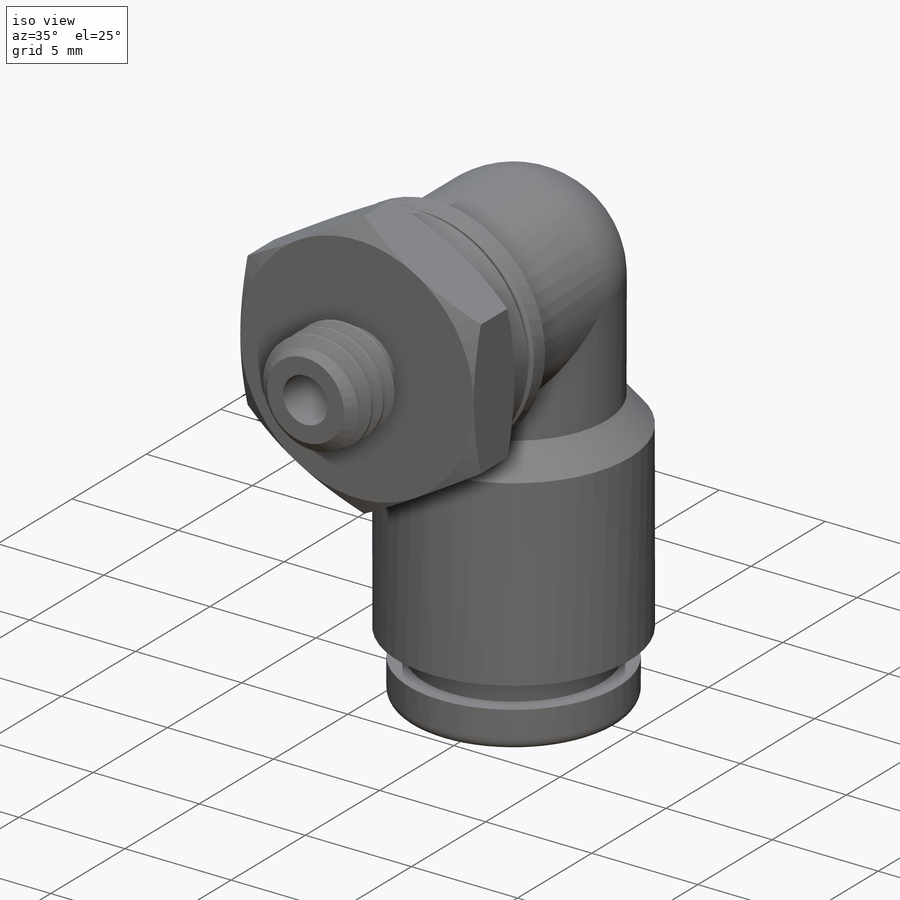
[diagram: iso view]
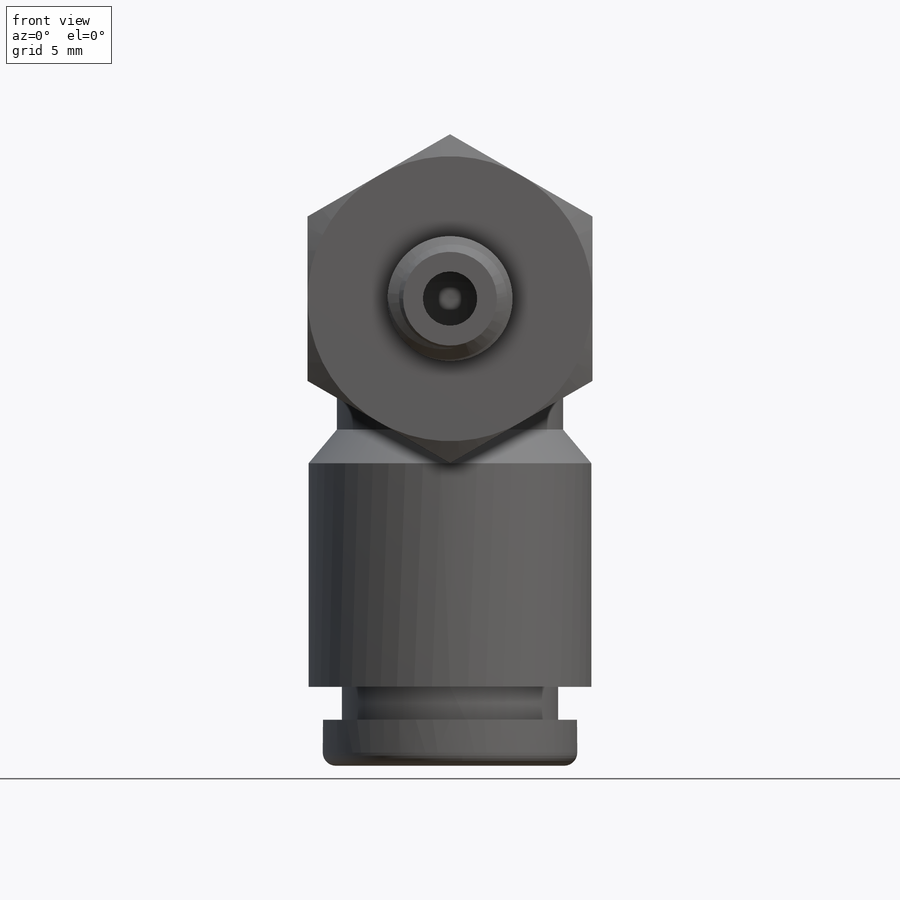
[diagram: front view]
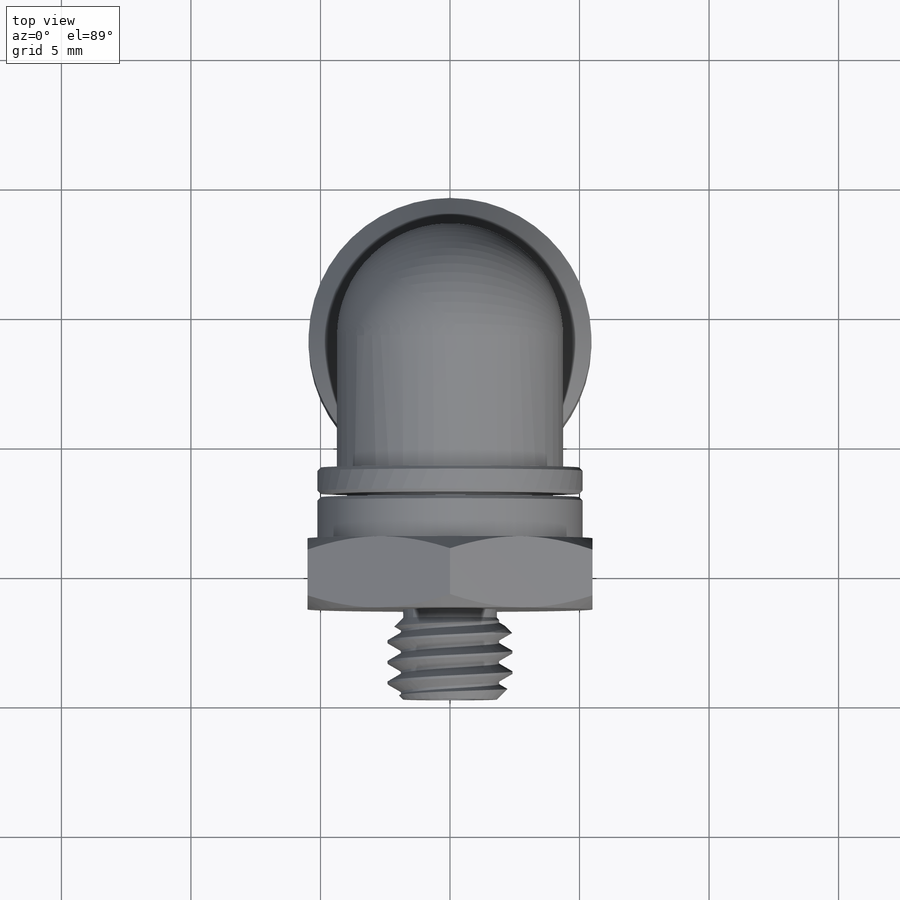
[diagram: top view]
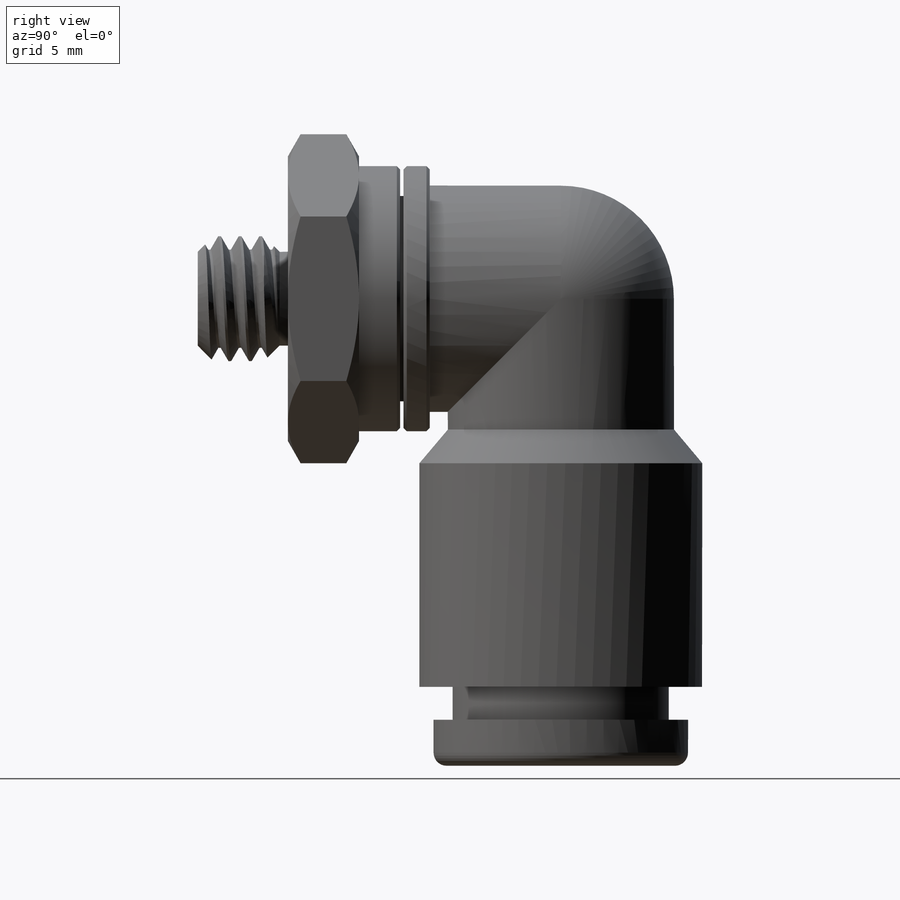
[diagram: right view]
SOLIDWORKS PART (.sldprt)
format: sldprt  version: not decoded by parser v0  size: 775,680 bytes
history: native  units: mm
features: sketch x21, cut_extrude x6, extrude x5, revolve x3, cut_revolve x2, material x1, helix x1, sweep x1, chamfer x1 (+15 scaffold rows collapsed)
feature tree (56):
  scaffold x15  (default folders/planes/origin — collapsed)
  material  "Material <not specified>"
  sketch  "Sketch1"  dims[pipe od=4.826mm D1=~0.697083mm]
  extrude  "Extrude1"  Depth=3.4798mm Thread length=3.4798mm
  sketch  "Sketch2"
  helix  "Helix/Spiral1"  Pitch=5.5118mm pitch=0.79375mm
  sketch  "Sketch3"  dims[c1.D1=~3.36501mm c2.D1=60.0deg c2.D2=~0.099219mm c2.D3=~0.396875mm c2.D4=1.5875mm c3.D4=5.0deg]
  sweep  "Cut-Sweep1"
  sketch  "Sketch4"  dims[c1.D1=1.5875mm c2.D1=~1.783333deg c2.D2=~2.930708mm c3.D2=45.0deg c3.D3=0.3175mm c3.D4=~1.418198mm c4.D4=45.0deg c4.D5=0.127mm c4.D6=~1.820931mm c4.D7=0.254mm c4.D1=~1.787485mm]
  cut_revolve  "Cut-Revolve1"  Angle=360deg
  sketch  "Sketch5"  dims[Hex Size=11.0mm]
  extrude  "Extrude2"  Depth=2.75mm
  sketch  "Sketch6"
  cut_extrude  "Cut-Extrude1"  [1 undecoded]
  sketch  "Sketch7"
  cut_extrude  "Cut-Extrude2"  [1 undecoded]
  sketch  "Sketch9"  dims[H=16.002mm L=18.034mm G=10.922mm]
  sketch  "Sketch10"  dims[c1.D3=0.508mm c1.D1=1.905mm c1.D2=1.27mm c1.D6=0.381mm c1.tube od=12.7mm c1.D4=17.78mm c1.D5=9.8298mm c1.D7=~30.249738mm c2.D7=40.0deg c2.D8=2.032mm c2.D1=~31.762975mm c3.D1=45.0deg c4.D1=~17.267413mm c5.D1=90.0deg c5.tube od=6.35mm c5.D4=10.922mm c5.D8=~8.35533mm c5.D9=1.778mm c5.D10=10.922mm c5.D7=~7.241452mm c6.D7=40.0deg]
  revolve  "Revolve1"  Angle=360deg
  sketch  "Sketch37"
  sketch  "Sketch11"  dims[c1.D1=~9.18971mm c2.D1=50.0deg c2.D2=1.524mm c2.D3=~12.78128mm c2.D4=1.5875mm c2.D5=0.127mm c2.D6=1.143mm c3.D2=~7.72302mm c3.D7=~11.297162mm c3.D1=1.016mm c3.D3=0.381mm]
  revolve  "Revolve2"  Angle=360deg
  sketch  "Sketch23"  dims[D1=8.7376mm]
  extrude  "Extrude3"  [1 undecoded]
  sketch  "Sketch30"  dims[D1=8.7376mm]
  extrude  "Extrude4"  [1 undecoded]
  sketch  "Sketch31"  dims[D1=0.0mm]
  revolve  "Revolve3"  Angle=90deg
  chamfer  "Chamfer1"  Distance=0.127mm Angle=45deg
  sketch  "Sketch18"  dims[D1=0.762mm]
  cut_extrude  "Cut-Extrude5"  [1 undecoded]
  sketch  "Sketch29"
  sketch  "Sketch32"
  extrude  "Extrude5"  [1 undecoded]
  sketch  "Sketch33"  dims[D1=0.635mm]
  cut_extrude  "Cut-Extrude6"  [1 undecoded]
  sketch  "Sketch34"  dims[D1=0.0mm]
  cut_revolve  "Cut-Revolve2"  Angle=90deg
  sketch  "Sketch35"
  cut_extrude  "Cut-Extrude7"  [1 undecoded]
  sketch  "Sketch36"
  cut_extrude  "Cut-Extrude8"  [1 undecoded]
decode coverage: 22 of 40 modeling features carry decoded parameters
note: ~ marks probable driven/reference dimensions
note: 9 parameter values undecoded
summary: no parameter record found for 9 features
note: suppression state not decoded; provenance and decode notes live in map.json
